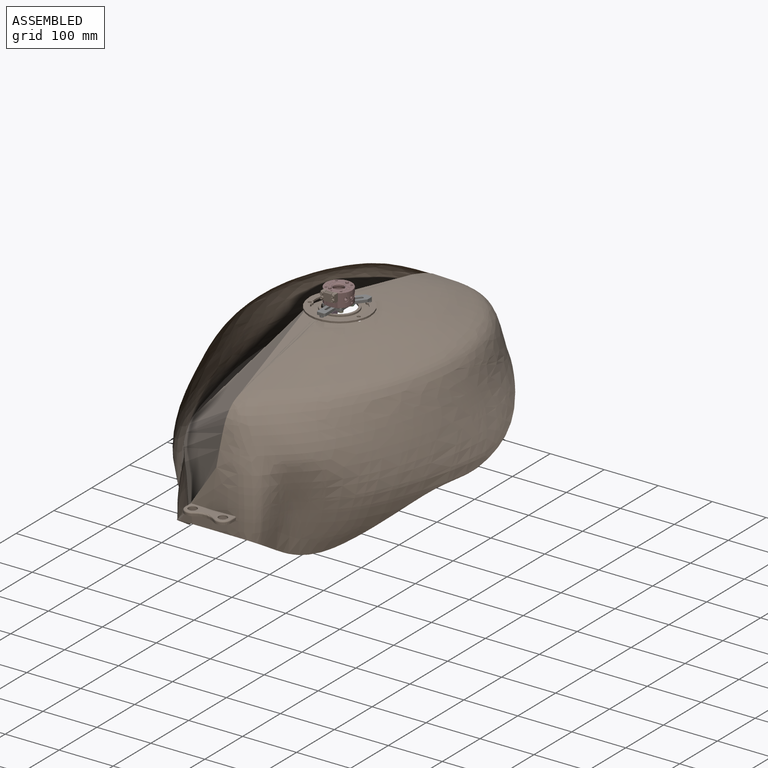
[diagram: assembled view]
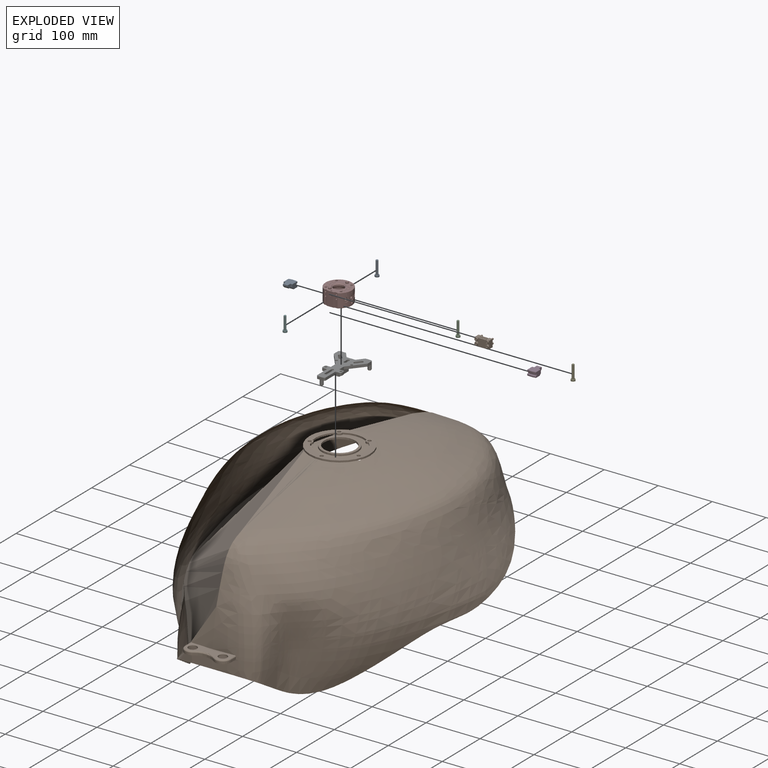
[diagram: exploded view]
GUIDED TOUR — MATED ASSEMBLY (Onshape document ca5175fbb71d1d4de8c3d87d, AutoMate assembly ca5175fbb71d1d4de8c3d87d_b550047f89b1c8840f0f20ed_bc22bf456f820fd22a0ebbf8_default)

This assembly has 10 components, labeled P0..P9 below (a component is one placed occurrence of a part; the same part can appear more than once), held together by 8 mates. A mate is a constraint between two components; its type names the relative motion it leaves free:
  FASTENED — locks the two components together rigidly (no relative motion),
  PLANAR — leaves sliding in the plane through the listed point (normal = the listed direction) and rotation about that normal free.
Axis/direction vectors are unit vectors and 'through' points are millimeter coordinates, both in the assembly's world frame.

MATES
  1. FASTENED "Fastened 4": P7 <-> P6, direction (0.000, 0.000, 1.000) through (0.00, -2.66, 8.18) mm
  2. PLANAR "Planar 4": P2 <-> P6, direction (0.000, 0.000, 1.000) through (14.14, 11.30, 3.18) mm
  3. PLANAR "Planar 5": P8 <-> P6, direction (0.000, 0.000, 1.000) through (-14.14, 11.30, 3.18) mm
  4. FASTENED "Fastened 3": P6 <-> P1, direction (0.000, 0.000, -1.000) through (0.00, -47.75, 0.00) mm
  5. PLANAR "Planar 1": P9 <-> P7, direction (0.000, 1.000, 0.000) through (0.00, -25.12, 27.13) mm
  6. FASTENED "Fastened 2": P1 <-> P3, direction (0.000, 0.000, 1.000) through (0.00, 0.00, 0.00) mm
  7. PLANAR "Planar 3": P5 <-> P6, direction (0.000, 0.000, 1.000) through (-14.14, -16.99, 3.18) mm
  8. PLANAR "Planar 2": P4 <-> P6, direction (0.000, 0.000, 1.000) through (14.14, -16.99, 3.18) mm

ASSEMBLY ORDER
  1. P7 — the base component [order verified]
  2. P2 [order verified]
  3. P8 [order verified]
  4. P4 [order verified]
  5. P5 [order verified]
  6. P6 [order verified]
  7. P0 [order verified]
  8. P1 [order verified]
  9. P9 [order verified]
  10. P3 [order verified]
(P6 verified with a relaxed clearance tolerance: the source model stores slight part interference there.)
Order-tag legend:
  [order verified] — this step's position reverses a verified removal order: the component was checked to insert without passing through the ones already placed.

Of the 10 components, 2 carry the full construction recipe — the FeatureScript program that regenerates the part's solid from scratch; the rest are supplied as boundary geometry only.
Each toured component is shown spotlighted twice — in the assembled view, then in the exploded view, where a leader line traces a displaced component back to its assembled socket (saturated green if recipe-attached, orange if geometry-only; every other component desaturated gray) — followed by its recipe or geometry summary and the mates that hold it.
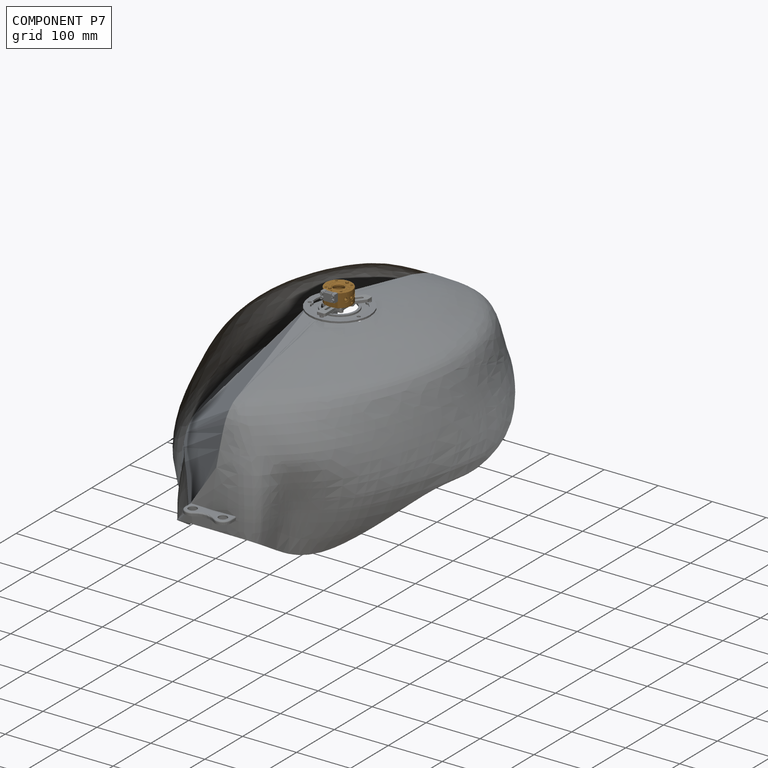
[diagram: component P7 — assembled]
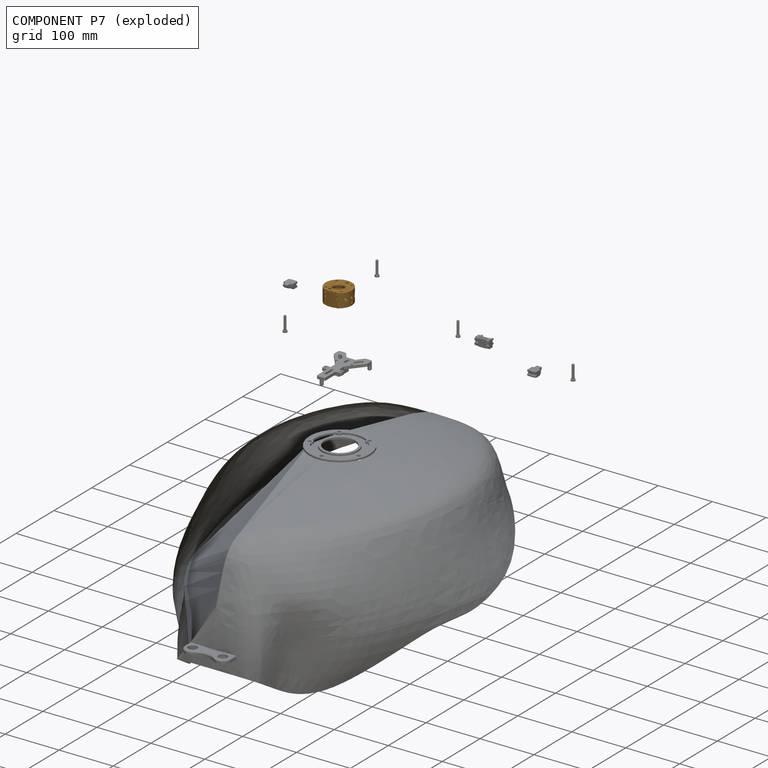
[diagram: component P7 — exploded]
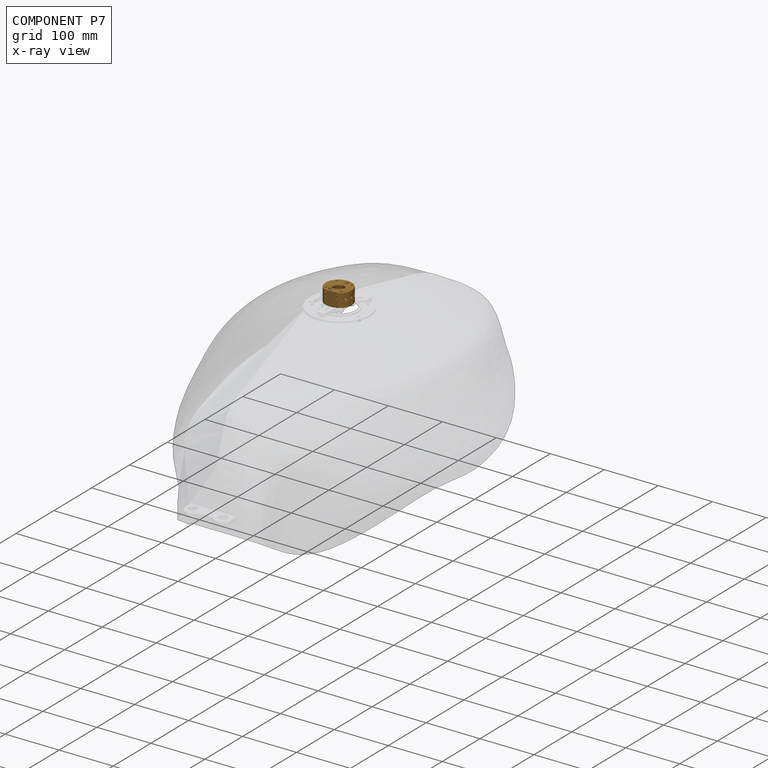
[diagram: component P7 — x-ray view]
COMPONENT P7 — geometry summary (no construction recipe available for this part):
  bounding box: 49.0 x 47.0 x 29.5 mm
  B-rep topology: 1 solid, 345 faces, 1774 edges
  volume: 32249 mm^3 (48% of its bounding box)
Held by: FASTENED mate "Fastened 4" to P6; PLANAR mate "Planar 1" to P9.
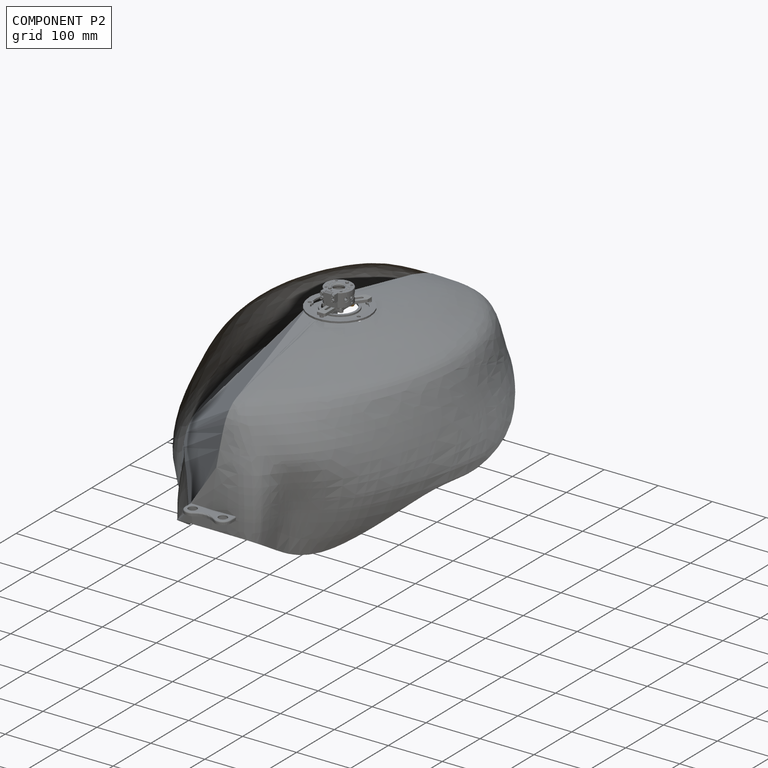
[diagram: component P2 — assembled]
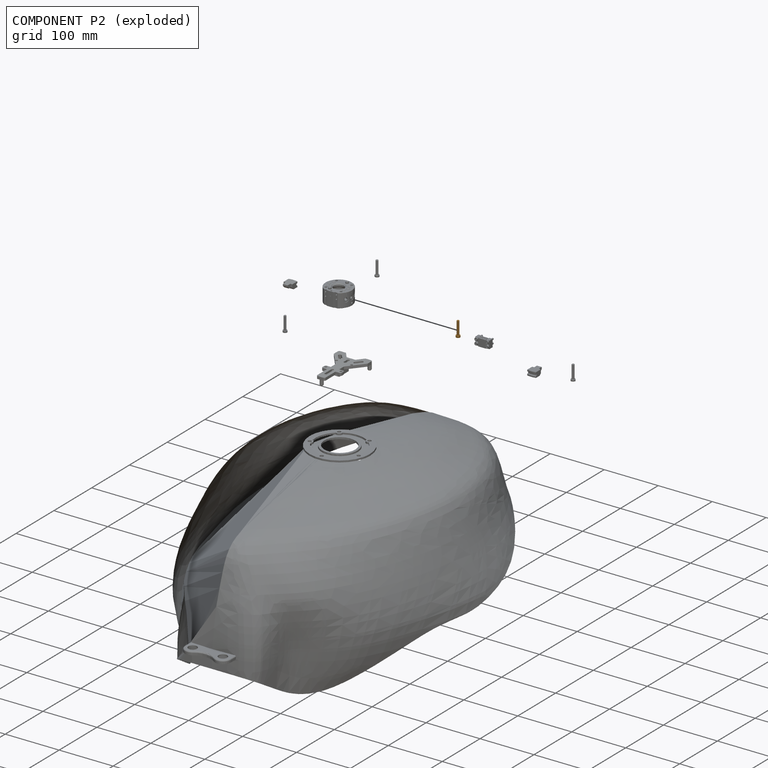
[diagram: component P2 — exploded]
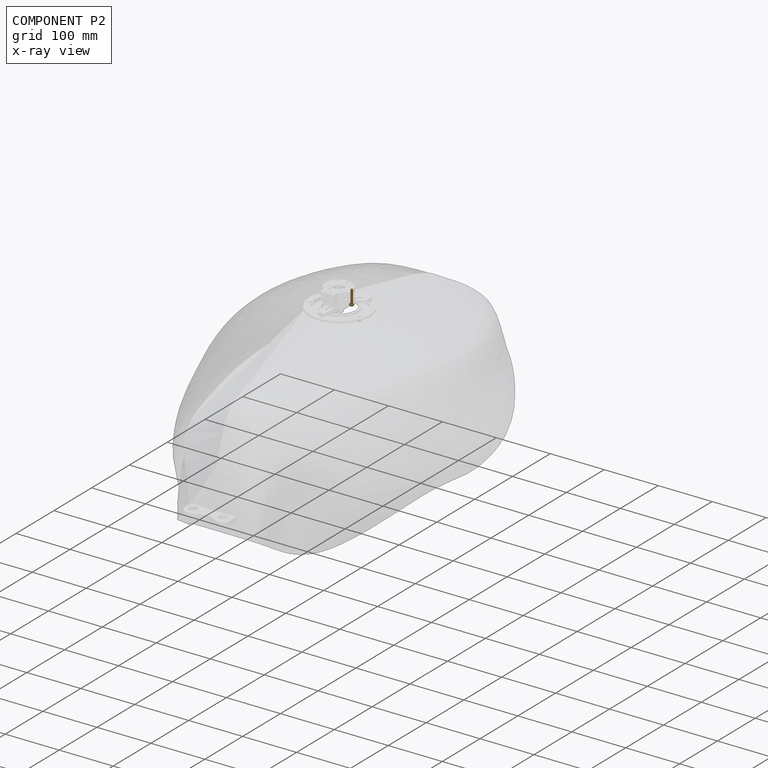
[diagram: component P2 — x-ray view]
COMPONENT P2 — geometry summary (no construction recipe available for this part):
  bounding box: 28.0 x 7.5 x 7.5 mm
  B-rep topology: 1 solid, 13 faces, 124 edges
  volume: 433 mm^3 (28% of its bounding box)
  symmetry: revolution-symmetric about the z axis through its bounding-box center; mirror-symmetric across its x mid-plane, y mid-plane
Held by: PLANAR mate "Planar 4" to P6.
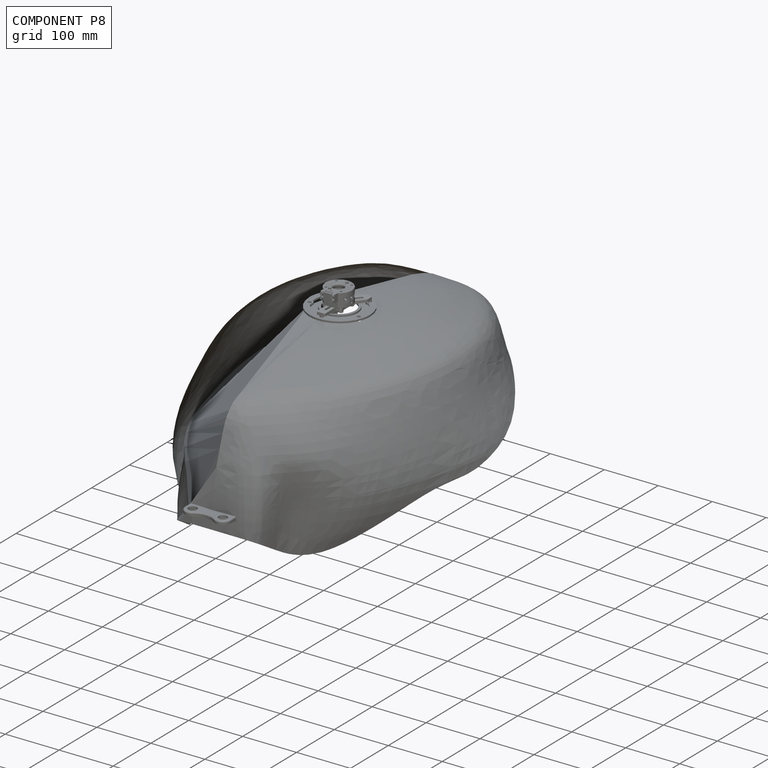
[diagram: component P8 — assembled]
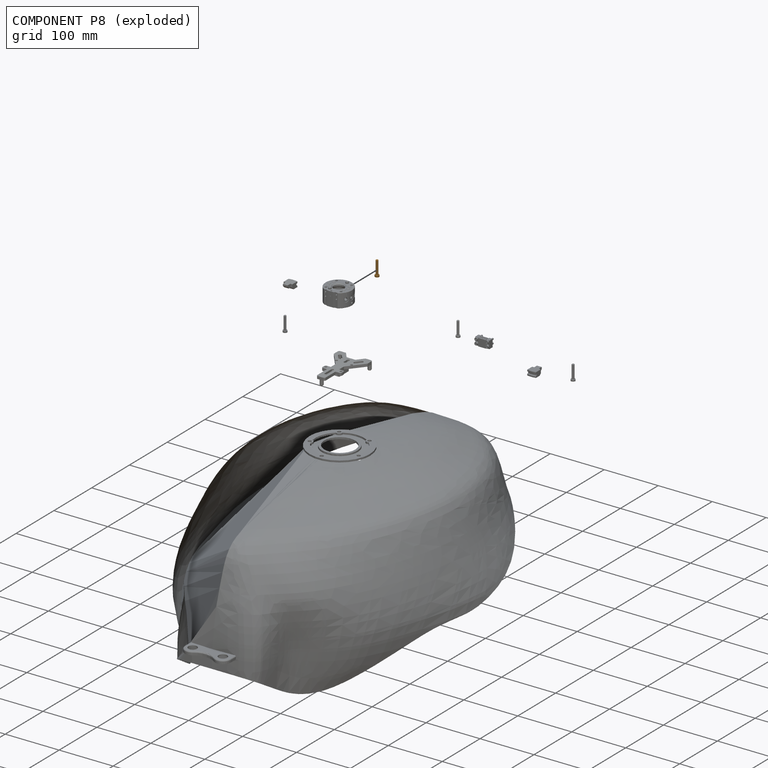
[diagram: component P8 — exploded]
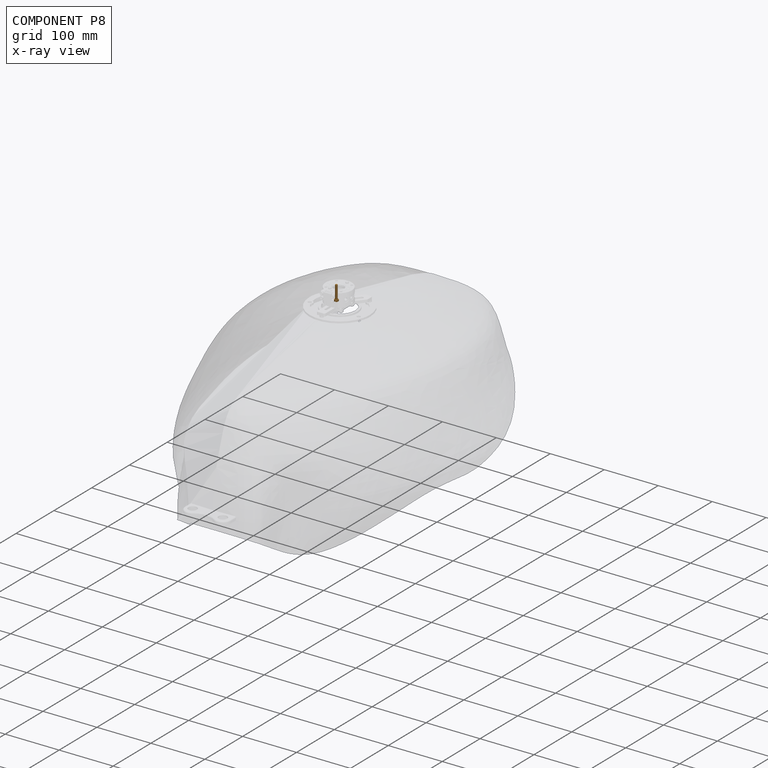
[diagram: component P8 — x-ray view]
COMPONENT P8 — geometry summary (no construction recipe available for this part):
  bounding box: 28.0 x 7.5 x 7.5 mm
  B-rep topology: 1 solid, 13 faces, 124 edges
  volume: 433 mm^3 (28% of its bounding box)
  symmetry: revolution-symmetric about the z axis through its bounding-box center; mirror-symmetric across its x mid-plane, y mid-plane
Held by: PLANAR mate "Planar 5" to P6.
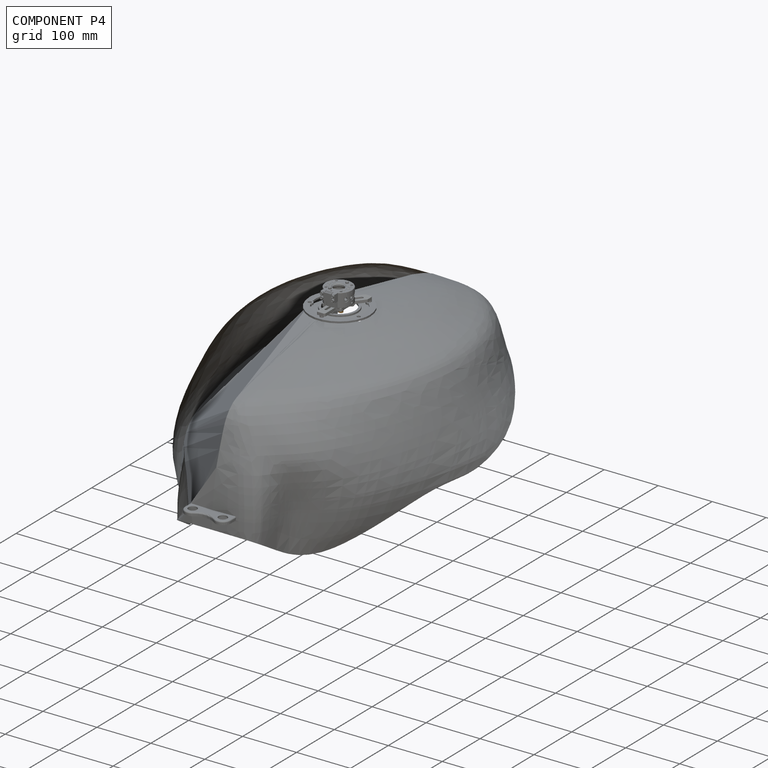
[diagram: component P4 — assembled]
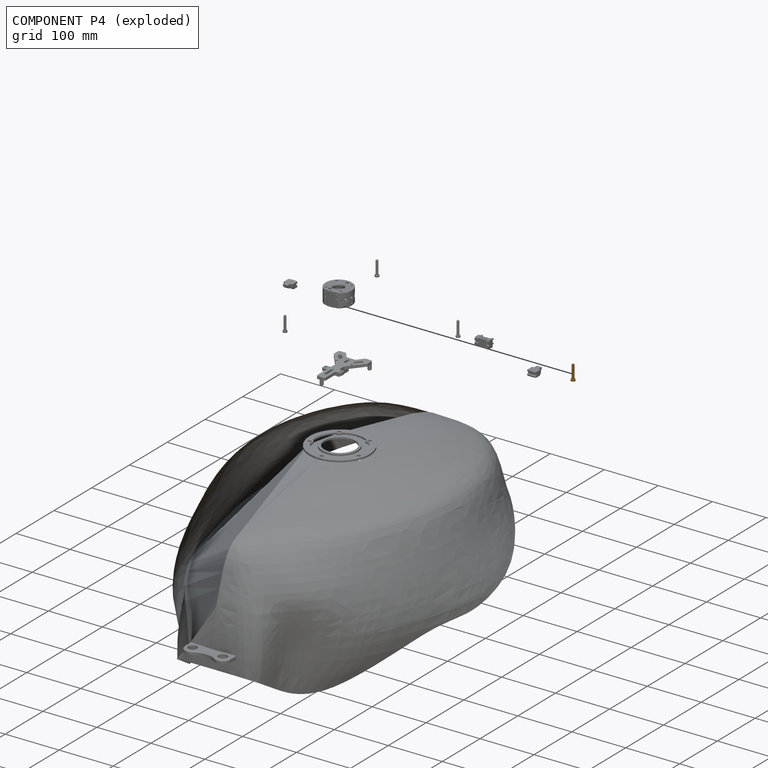
[diagram: component P4 — exploded]
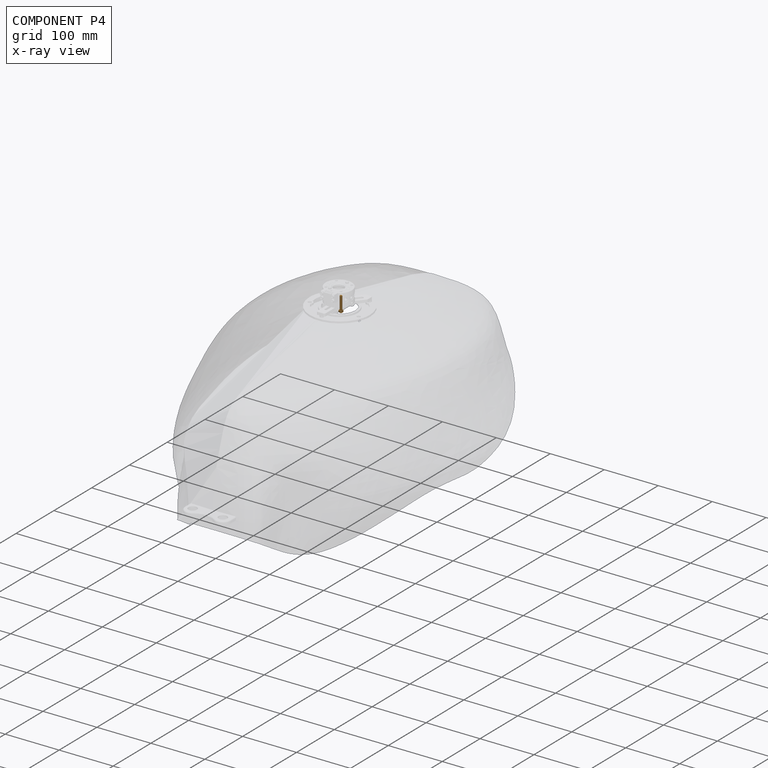
[diagram: component P4 — x-ray view]
COMPONENT P4 — geometry summary (no construction recipe available for this part):
  bounding box: 28.0 x 7.5 x 7.5 mm
  B-rep topology: 1 solid, 13 faces, 124 edges
  volume: 433 mm^3 (28% of its bounding box)
  symmetry: revolution-symmetric about the z axis through its bounding-box center; mirror-symmetric across its x mid-plane, y mid-plane
Held by: PLANAR mate "Planar 2" to P6.
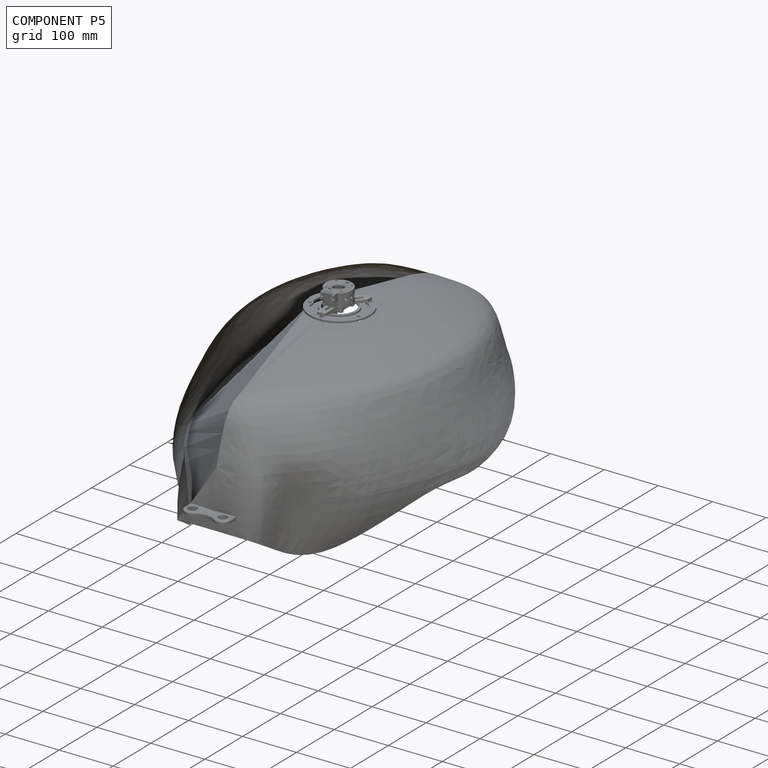
[diagram: component P5 — assembled]
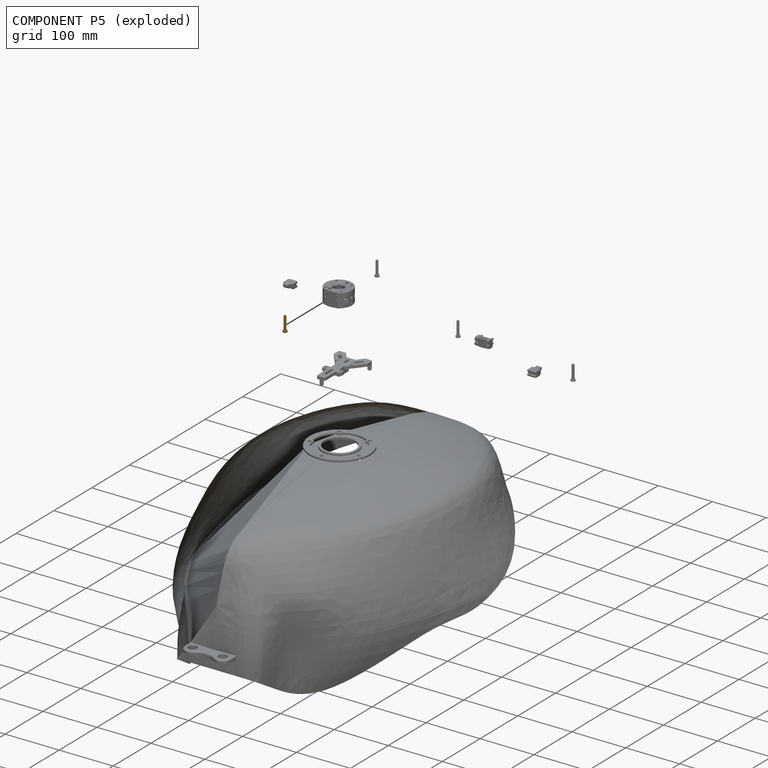
[diagram: component P5 — exploded]
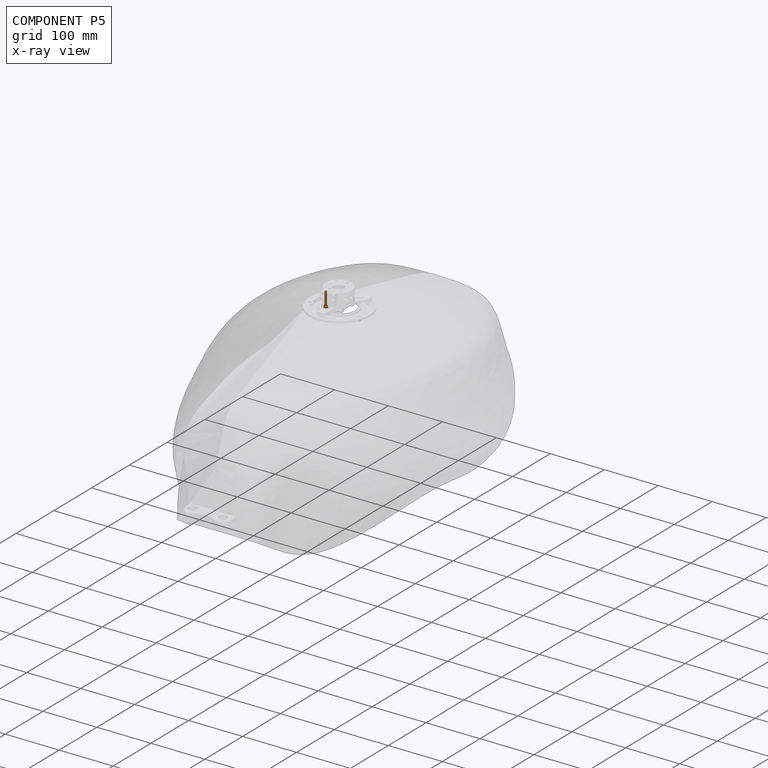
[diagram: component P5 — x-ray view]
COMPONENT P5 — geometry summary (no construction recipe available for this part):
  bounding box: 28.0 x 7.5 x 7.5 mm
  B-rep topology: 1 solid, 13 faces, 124 edges
  volume: 433 mm^3 (28% of its bounding box)
  symmetry: revolution-symmetric about the z axis through its bounding-box center; mirror-symmetric across its x mid-plane, y mid-plane
Held by: PLANAR mate "Planar 3" to P6.
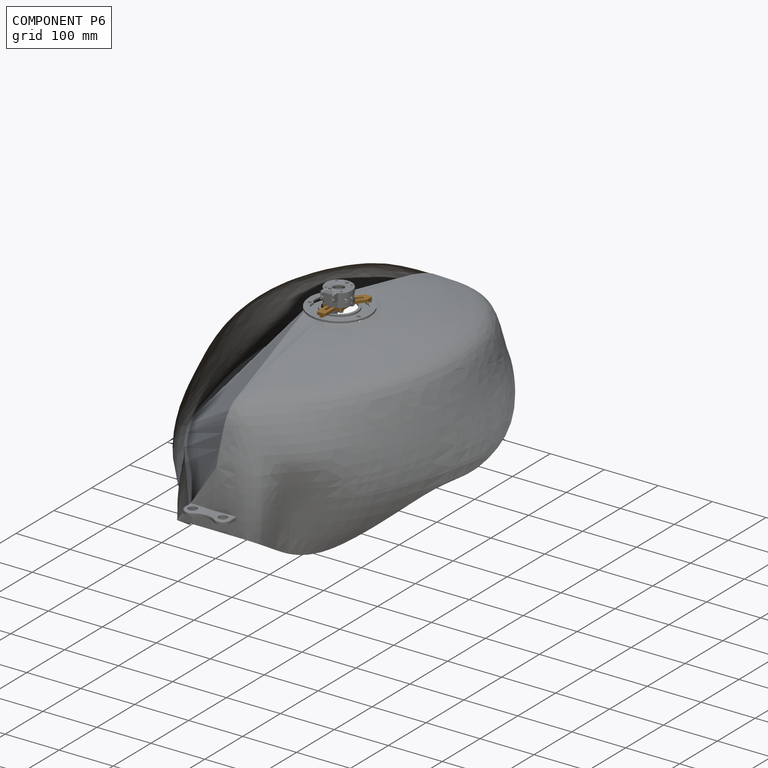
[diagram: component P6 — assembled]
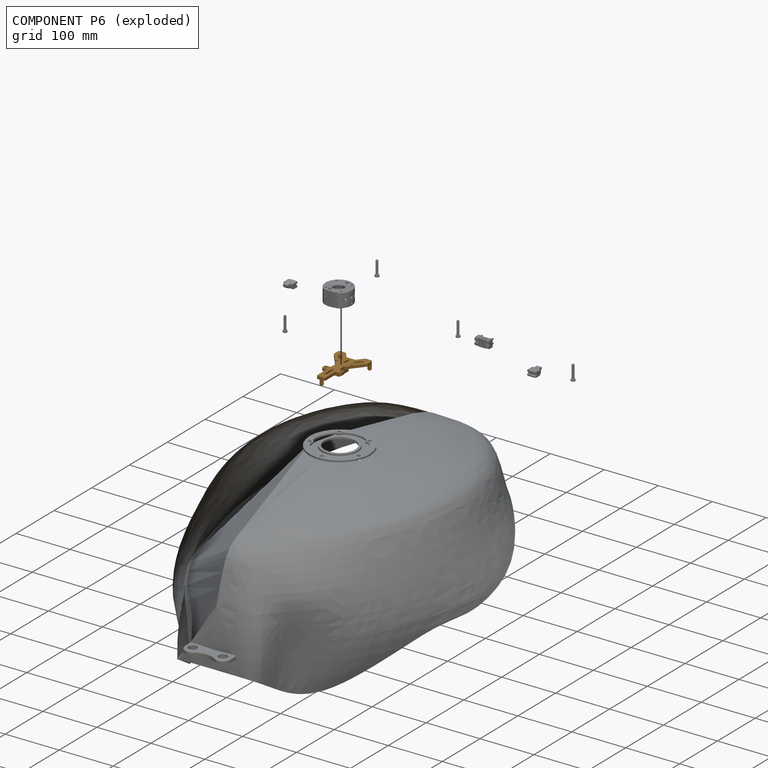
[diagram: component P6 — exploded]
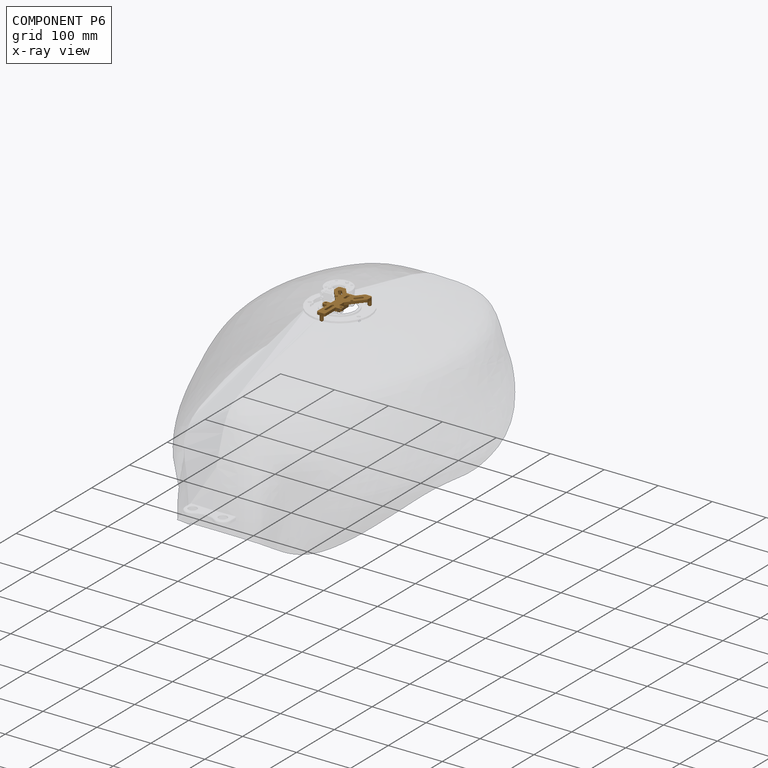
[diagram: component P6 — x-ray view]
COMPONENT P6 — geometry summary (no construction recipe available for this part):
  bounding box: 93.1 x 62.5 x 15.0 mm
  B-rep topology: 1 solid, 67 faces, 390 edges
  volume: 13650 mm^3 (16% of its bounding box)
  symmetry: mirror-symmetric across its y mid-plane
Held by: FASTENED mate "Fastened 4" to P7; PLANAR mate "Planar 4" to P2; PLANAR mate "Planar 5" to P8; FASTENED mate "Fastened 3" to P1; PLANAR mate "Planar 3" to P5; PLANAR mate "Planar 2" to P4.
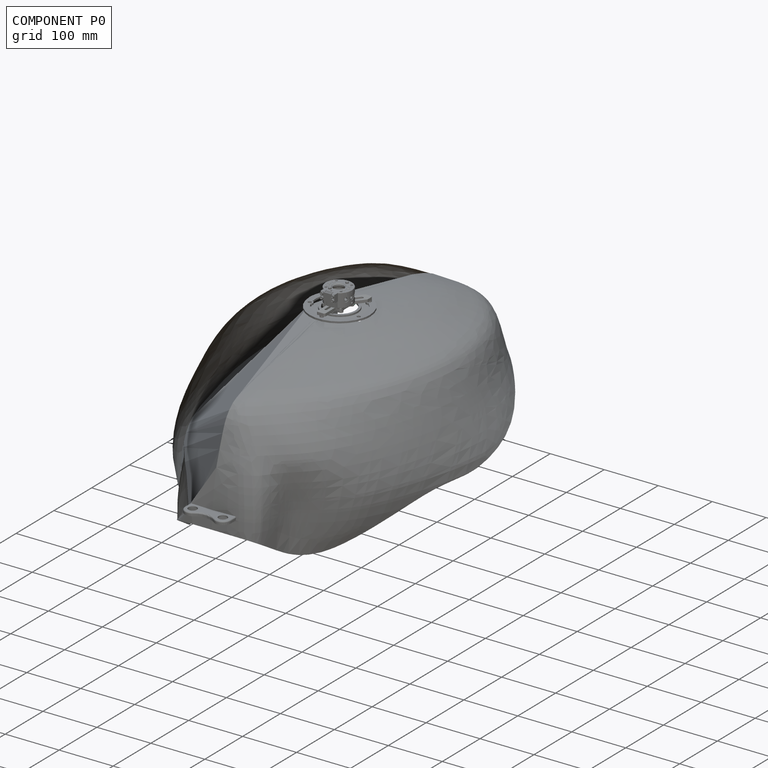
[diagram: component P0 — assembled]
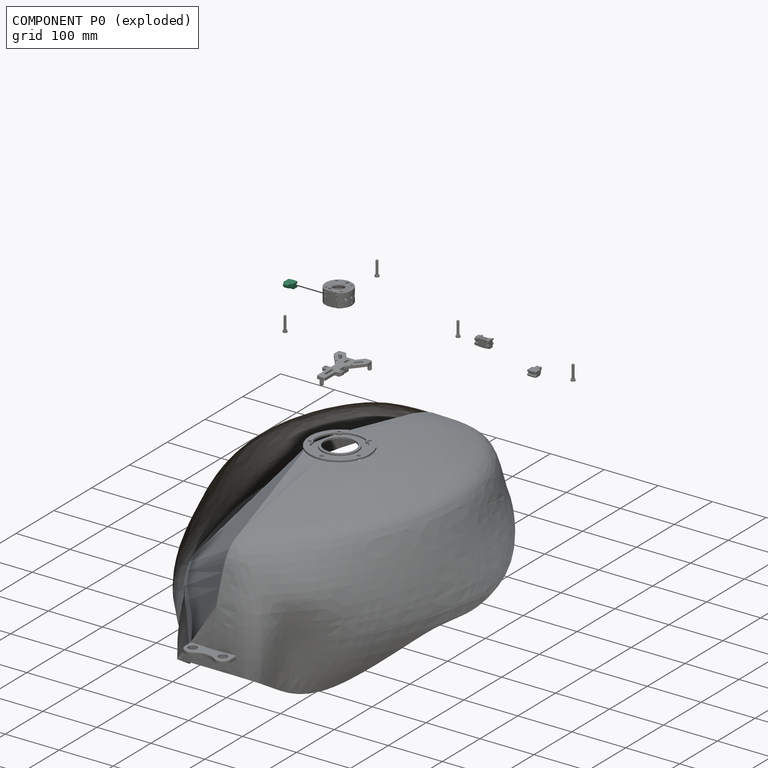
[diagram: component P0 — exploded]
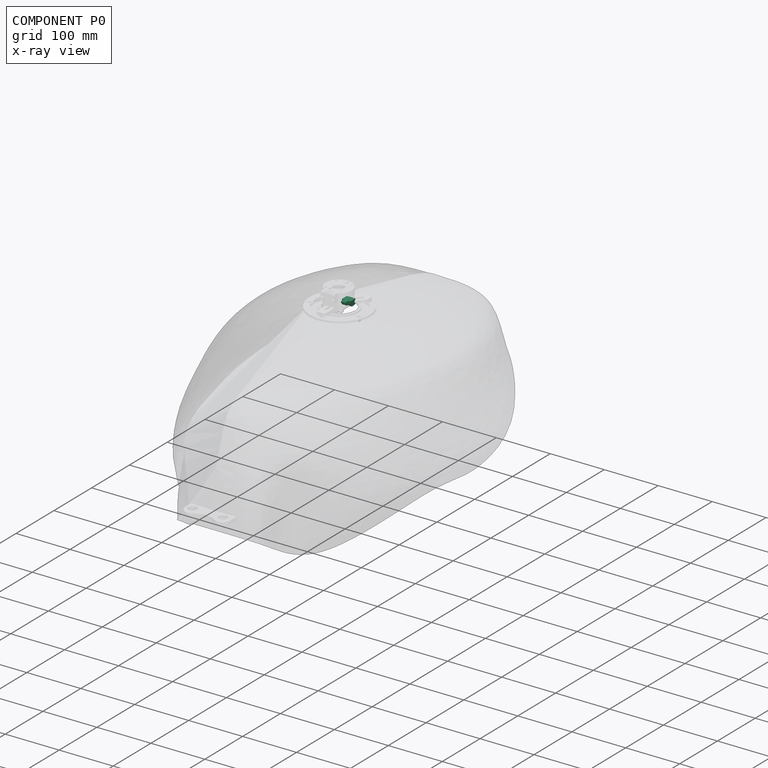
[diagram: component P0 — x-ray view]
COMPONENT P0 — recipe-attached (CADFS 00661609, mesh-verified: the recipe's output STEP matches this component's geometry to below the mesh-comparison resolution (tessellation chordal tolerance ~0.0429 mm)).
Held by: no mates (free).
Construction recipe (FeatureScript — the CAD program that rebuilds this solid; sketch coordinates are in the units given by the * unit suffixes, e.g. mm):

FeatureScript 1511;
import(path : "onshape/std/geometry.fs", version : "1511.0");
import(path : "onshape/std/common.fs", version : "1511.0");
const mm = millimeter;
const VERTEX = EntityType.VERTEX;
const EDGE = EntityType.EDGE;
const FACE = EntityType.FACE;
const BODY = EntityType.BODY;
function v(x, y){return vector(x, y);}
function OD(order){return orderDisambiguation(order);}
function OSD(set){return originalSetDisambiguation(set);}
function TD(topology){return topologyDisambiguation(topology);}
function TDD(query){return trueDependencyDisambiguation(query);}
function sQuery(a, b, c) {return sketchEntityQuery(a, b, c);}

annotation { "Feature Type Name" : "Feature", "Feature Type Description" : "" }
export const myFeature = defineFeature(function(context is Context, id is Id, definition is map)
    precondition{}
    {
        {
            var Q0;
            Q0=qCreatedBy(makeId("Top.planeOp"),FACE);
            var sketch = newSketch(context, id + "F0", { "sketchPlane" : qUnion([Q0])});
            skLineSegment(sketch, "E0.left", {"start": v(-8.12, 27.44) * mm, "end": v(-8.12, 16.84) * mm});
            skLineSegment(sketch, "E0.right", {"start": v(8.12, 27.44) * mm, "end": v(8.12, 16.84) * mm});
            skPoint(sketch, "E0.middle", {"position": v(0, 0) * mm});
            skArc(sketch, "E1", {"start": v(8.12, 27.44) * mm, "mid": v(0, 28.62) * mm, "end": v(-8.12, 27.44) * mm});
            skPoint(sketch, "E2.orphan", {"position": v(8.12, 28.62) * mm});
            skPoint(sketch, "E3.orphan", {"position": v(-8.12, 28.62) * mm});
            skPoint(sketch, "E4.orphan", {"position": v(-8.12, -28.62) * mm});
            skPoint(sketch, "E5.orphan", {"position": v(8.12, -28.62) * mm});
            skLineSegment(sketch, "E6.top", {"start": v(-8.12, 16.84) * mm, "end": v(8.12, 16.84) * mm});
            skLineSegment(sketch, "E7", {"start": v(0, 0) * mm, "end": v(0, 32.38) * mm, "construction": true});
            skPoint(sketch, "E7.endSnap0", {"position": v(0, 28.62) * mm});
            skLineSegment(sketch, "E8.bottom", {"start": v(4.43, 16.84) * mm, "end": v(0, 16.84) * mm});
            skLineSegment(sketch, "E8.top", {"start": v(4.43, 9.36) * mm, "end": v(0, 9.36) * mm});
            skLineSegment(sketch, "E8.left", {"start": v(4.43, 16.84) * mm, "end": v(4.43, 9.36) * mm});
            skLineSegment(sketch, "E8.right", {"start": v(0, 16.84) * mm, "end": v(0, 9.36) * mm});
            skLineSegment(sketch, "E9.MirrorCS", {"start": v(-4.43, 9.36) * mm, "end": v(0, 9.36) * mm});
            skLineSegment(sketch, "E10.MirrorCS", {"start": v(-4.43, 16.84) * mm, "end": v(-4.43, 9.36) * mm});
            skLineSegment(sketch, "E11.MirrorCS", {"start": v(8.12, 16.84) * mm, "end": v(-8.12, 16.84) * mm});
            skPoint(sketch, "E6.bottom.start.orphan", {"position": v(-8.12, -16.84) * mm});
            skPoint(sketch, "E12.trimOffspring.start.orphan", {"position": v(8.12, -16.84) * mm});
            skSolve(sketch);
        }
        {
            var Q0;
            Q0 = qSketchRegion(id + "F0", true);
            extrude(context, id + "F1", {"entities" : qUnion([Q0]), "oppositeDirection" : true, "depth" : 3.18 * mm, "offsetDistance" : 25 * mm});
        }
        {
            var Q0;
            Q0=makeQuery(id+"F0.imprint","IMPRINT",FACE,{"disambiguationData":[TD([[makeQuery(id+"F0.imprint","IMPRINT",EDGE,{"derivedFrom":sQuery(id+"F0.wireOp",EDGE,"E0.left")}),1.0]])]});
            var sketch = newSketch(context, id + "F2", { "sketchPlane" : qUnion([Q0])});
            skArc(sketch, "E13", {"start": v(8.1, 29.78) * mm, "mid": v(0, 30.86) * mm, "end": v(-8.13, 29.77) * mm});
            skLineSegment(sketch, "E14", {"start": v(-8.13, 27.45) * mm, "end": v(-8.13, 29.77) * mm});
            skLineSegment(sketch, "E15", {"start": v(8.1, 27.49) * mm, "end": v(8.1, 29.78) * mm});
            skLineSegment(sketch, "E16", {"start": v(-8.13, 27.45) * mm, "end": v(-8.13, 16.84) * mm});
            skLineSegment(sketch, "E17", {"start": v(-8.13, 16.84) * mm, "end": v(8.12, 16.84) * mm});
            skLineSegment(sketch, "E18", {"start": v(8.12, 16.84) * mm, "end": v(8.1, 27.49) * mm});
            skSolve(sketch);
        }
        {
            var Q0;
            Q0 = qSketchRegion(id + "F2", true);
            extrude(context, id + "F3", {"entities" : qUnion([Q0]), "operationType" : NewBodyOperationType.ADD, "depth" : 3.17 * mm, "offsetDistance" : 25 * mm});
        }
        {
            var Q0;
            Q0=qCreatedBy(makeId("Top.planeOp"),FACE);
            cPlane(context, id + "F4", {"entities" : qUnion([Q0]), "cplaneType" : CPlaneType.OFFSET, "offset" : 1.59 * mm, "oppositeDirection" : true, "width" : 150 * mm, "height" : 150 * mm});
        }
        {
            var Q0;
            Q0=makeQuery(id+"F1.opExtrude","SWEPT_BODY",BODY,{"disambiguationData":[OSD([sQuery(id+"F0.wireOp",EDGE,"E0.left"),sQuery(id+"F0.wireOp",EDGE,"E0.right"),sQuery(id+"F0.wireOp",EDGE,"E1"),sQuery(id+"F0.wireOp",EDGE,"E8.top"),sQuery(id+"F0.wireOp",EDGE,"E8.left"),sQuery(id+"F0.wireOp",EDGE,"E9.MirrorCS"),sQuery(id+"F0.wireOp",EDGE,"E10.MirrorCS"),sQuery(id+"F0.wireOp",EDGE,"E11.MirrorCS")])]});
            var Q1;
            Q1=qCreatedBy(id+"F4.planeOp",FACE);
            mirror(context, id + "F5", {"operationType" : NewBodyOperationType.ADD, "entities" : qUnion([Q0]), "mirrorPlane" : qUnion([Q1])});
        }
        {
            var Q0;
            Q0=makeQuery(id+"F5.opPattern","COPY",EDGE,{"derivedFrom":makeQuery(id+"F3.opExtrude","CAP_EDGE",EDGE,{"disambiguationData":[OSD([sQuery(id+"F2.wireOp",EDGE,"E13")])],"isStart":true}),"instanceName":"1"});
            var Q1;
            Q1=makeQuery(id+"F3.opExtrude","CAP_EDGE",EDGE,{"disambiguationData":[OSD([sQuery(id+"F2.wireOp",EDGE,"E13")])],"isStart":true});
            chamfer(context, id + "F6", {"entities" : qUnion([Q0, Q1]), "width" : .75 * mm, "tangentPropagation" : true});
        }
        {
            var Q0;
            {var subQ0=sQuery(id+"F0.wireOp",EDGE,"E8.right");Q0=makeQuery(id+"F0.imprint","IMPRINT",FACE,{"disambiguationData":[TD([[makeQuery(id+"F0.imprint","IMPRINT",EDGE,{"derivedFrom":subQ0}),-1.0]])]});}
            var sketch = newSketch(context, id + "F7", { "sketchPlane" : qUnion([Q0])});
            skLineSegment(sketch, "E19.bottom", {"start": v(-4.43, 16.84) * mm, "end": v(4.43, 16.84) * mm});
            skLineSegment(sketch, "E19.top", {"start": v(-4.43, 9.36) * mm, "end": v(4.43, 9.36) * mm});
            skLineSegment(sketch, "E19.left", {"start": v(-4.43, 16.84) * mm, "end": v(-4.43, 9.36) * mm});
            skLineSegment(sketch, "E19.right", {"start": v(4.43, 16.84) * mm, "end": v(4.43, 9.36) * mm});
            skSolve(sketch);
        }
        {
            var Q0;
            Q0 = qSketchRegion(id + "F7", true);
            extrude(context, id + "F8", {"entities" : qUnion([Q0]), "operationType" : NewBodyOperationType.ADD, "depth" : 3.17 * mm, "offsetDistance" : 25 * mm});
        }
        {
            var Q0;
            Q0=makeQuery(id+"F1.opExtrude","CAP_EDGE",EDGE,{"disambiguationData":[OSD([sQuery(id+"F0.wireOp",EDGE,"E8.top"),sQuery(id+"F0.wireOp",EDGE,"E9.MirrorCS")])],"isStart":false});
            var Q1;
            Q1=makeQuery(id+"F5.opPattern","COPY",EDGE,{"derivedFrom":makeQuery(id+"F3.opExtrude","CAP_EDGE",EDGE,{"disambiguationData":[OSD([sQuery(id+"F2.wireOp",EDGE,"E17")])],"isStart":false}),"instanceName":"1"});
            chamfer(context, id + "F9", {"entities" : qUnion([Q0, Q1]), "width" : 3.17 * mm, "tangentPropagation" : true});
        }
    });
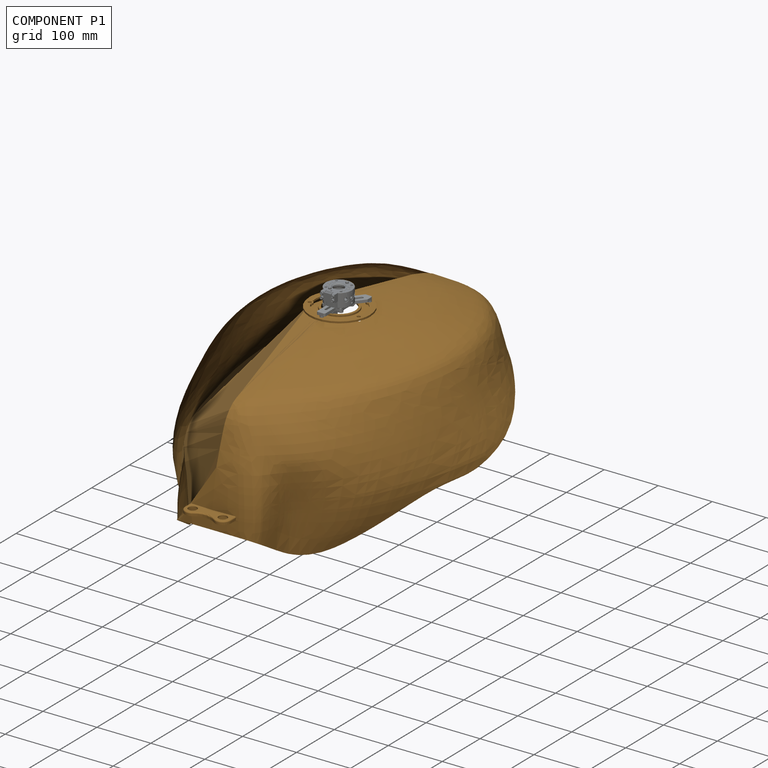
[diagram: component P1 — assembled]
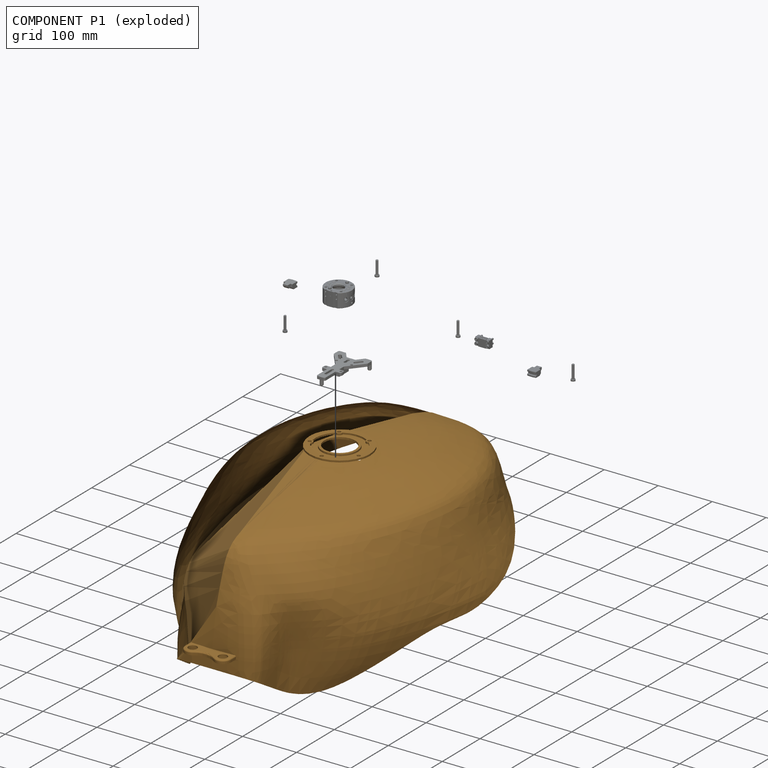
[diagram: component P1 — exploded]
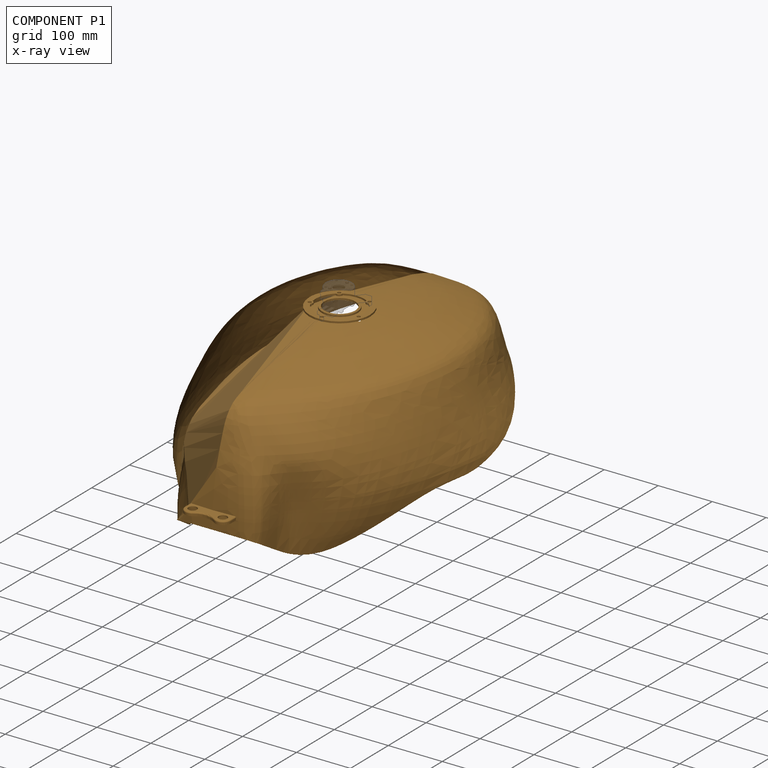
[diagram: component P1 — x-ray view]
COMPONENT P1 — geometry summary (no construction recipe available for this part):
  bounding box: 672.8 x 498.8 x 295.5 mm
  B-rep topology: 1 solid, 110 faces, 694 edges
  volume: 299007 mm^3 (0% of its bounding box)
Held by: FASTENED mate "Fastened 3" to P6; FASTENED mate "Fastened 2" to P3.
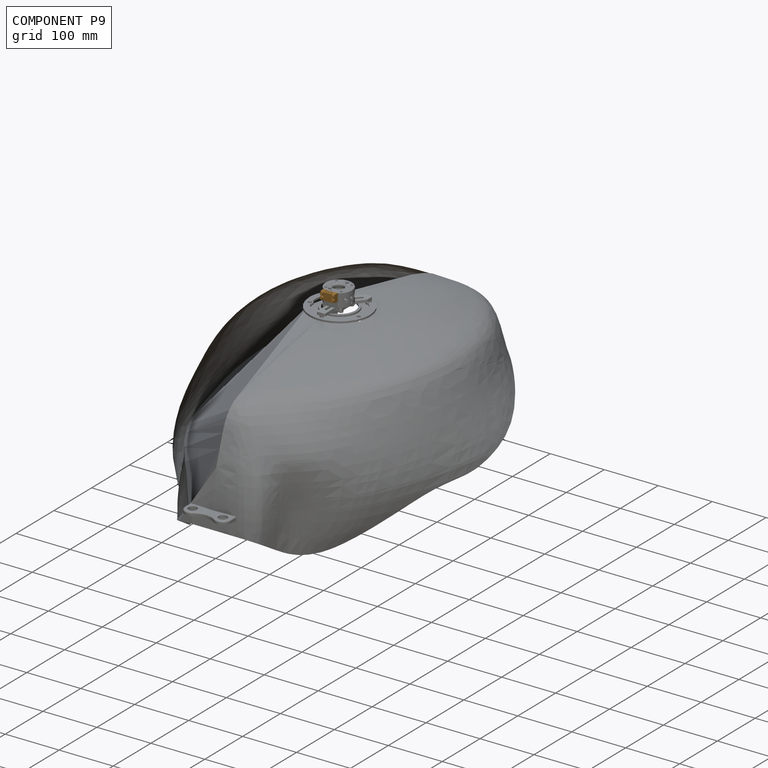
[diagram: component P9 — assembled]
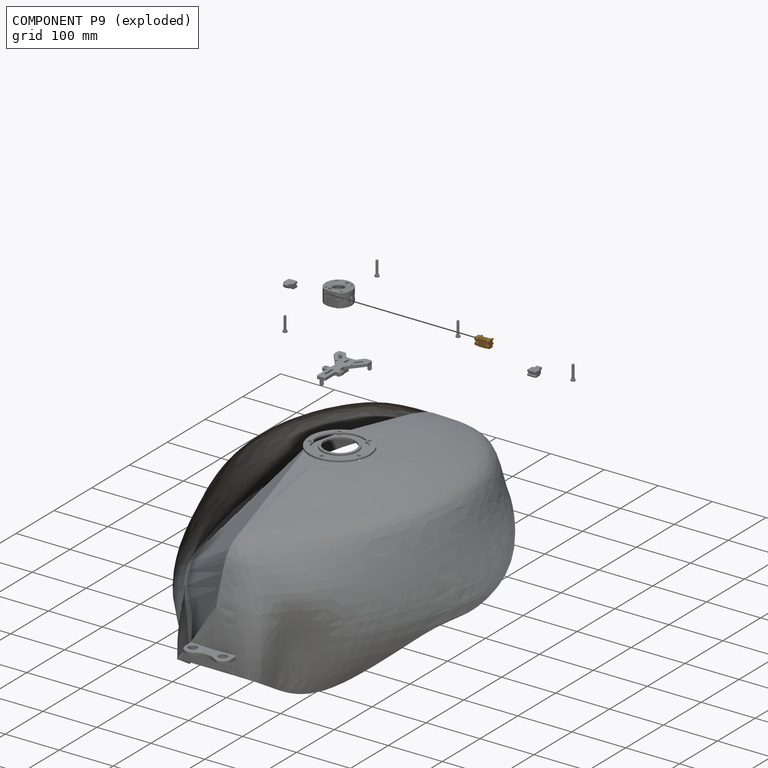
[diagram: component P9 — exploded]
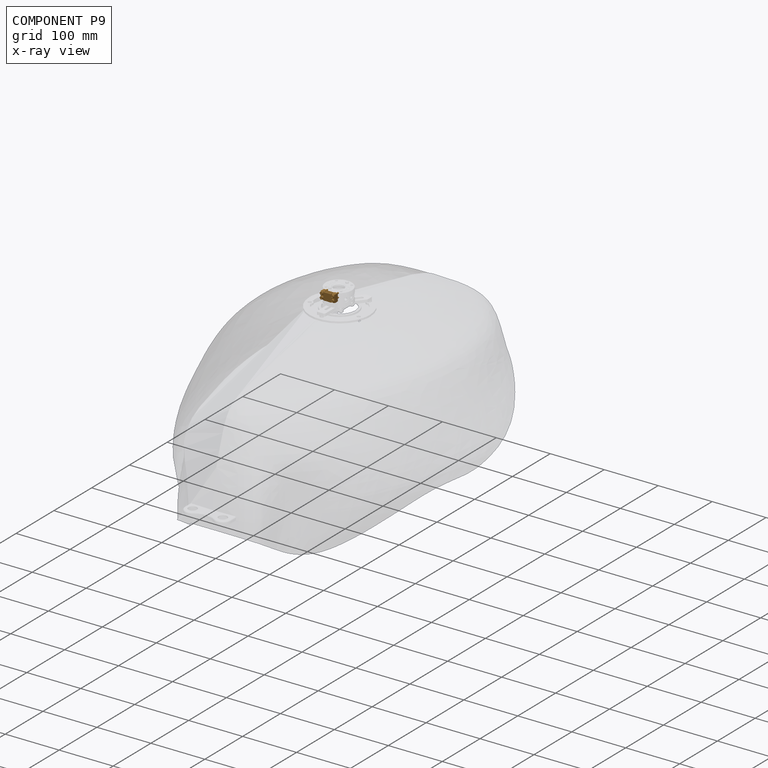
[diagram: component P9 — x-ray view]
COMPONENT P9 — geometry summary (no construction recipe available for this part):
  bounding box: 26.0 x 17.0 x 14.8 mm
  B-rep topology: 1 solid, 268 faces, 1168 edges
  volume: 3186 mm^3 (49% of its bounding box)
  symmetry: mirror-symmetric across its x mid-plane
Held by: PLANAR mate "Planar 1" to P7.
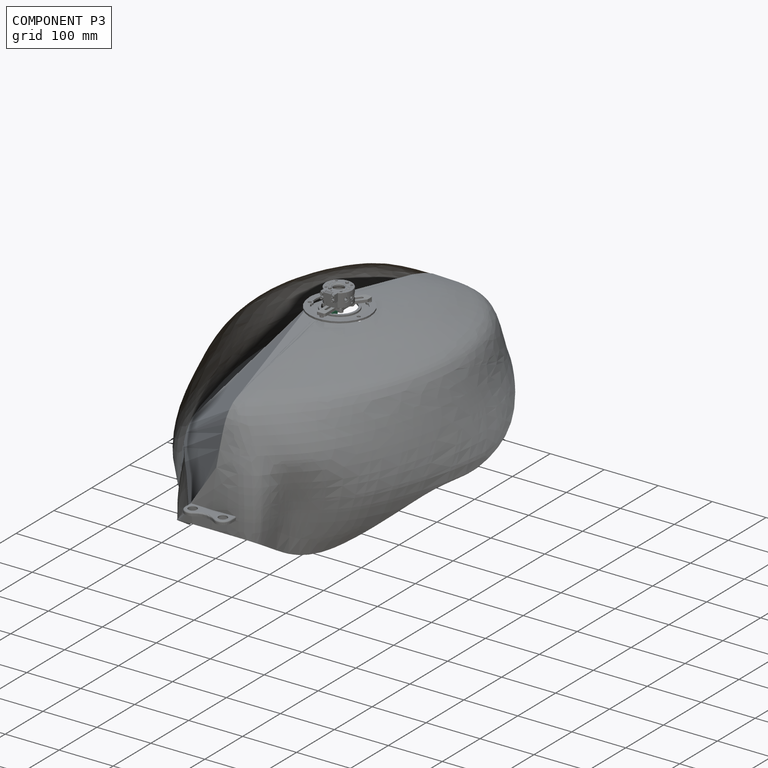
[diagram: component P3 — assembled]
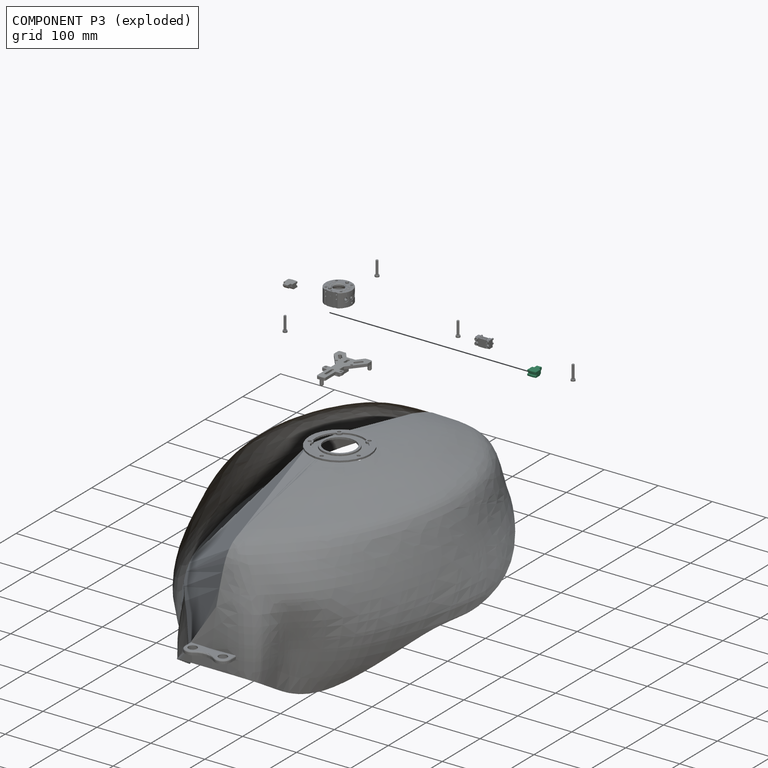
[diagram: component P3 — exploded]
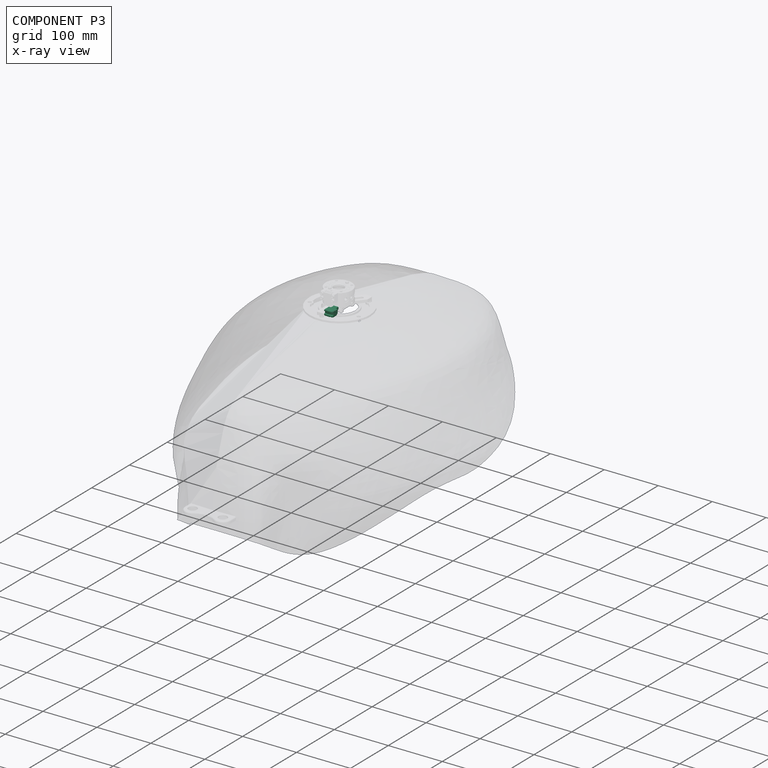
[diagram: component P3 — x-ray view]
COMPONENT P3 — same part as P0 (CADFS 00661609); its construction recipe is shown at P0.
Held by: FASTENED mate "Fastened 2" to P1.
PROVENANCE & LICENSES
Assembly (occurrences, transforms, mates, per-part STEP geometry): AutoMate dataset, Zenodo record 7776208, CC0.
Construction recipes: CADFS (HuggingFace VladPyatov/CADFS, CC-BY-4.0, layered over the ABC dataset), FeatureScript reconstruction programs keyed by ABC model id.
Join: ABC meta listings map ABC model id -> Onshape documentId; within a shared document, parts are matched by geometric signature (bounding-box dims + volume at 0.1% relative tolerance, exact B-rep face/solid counts).
Verification: 2 of this assembly's 10 components carry a recipe attachment, and every attachment is mesh-verified: the CADFS STEP and the AutoMate member STEP were compared as meshes in their shared local frame (symmetric sampled-point-to-mesh distance); worst across the 2 attachments: below the mesh-comparison resolution (tessellation chordal tolerance ~0.0429 mm) on a 29 mm part.
Renders: orthographic iso camera (az 35 / el 25); the floor grid conveys scale (grid pitch printed in each image; no ruler). In the exploded view each component is displaced by its stored offset vector: the offsets alone carry the explosion direction (mate normal/axis signs are not orientation cues and do not encode it), and separation distances are assigned per mate-chain, not proportionally to assembly-order depth.
